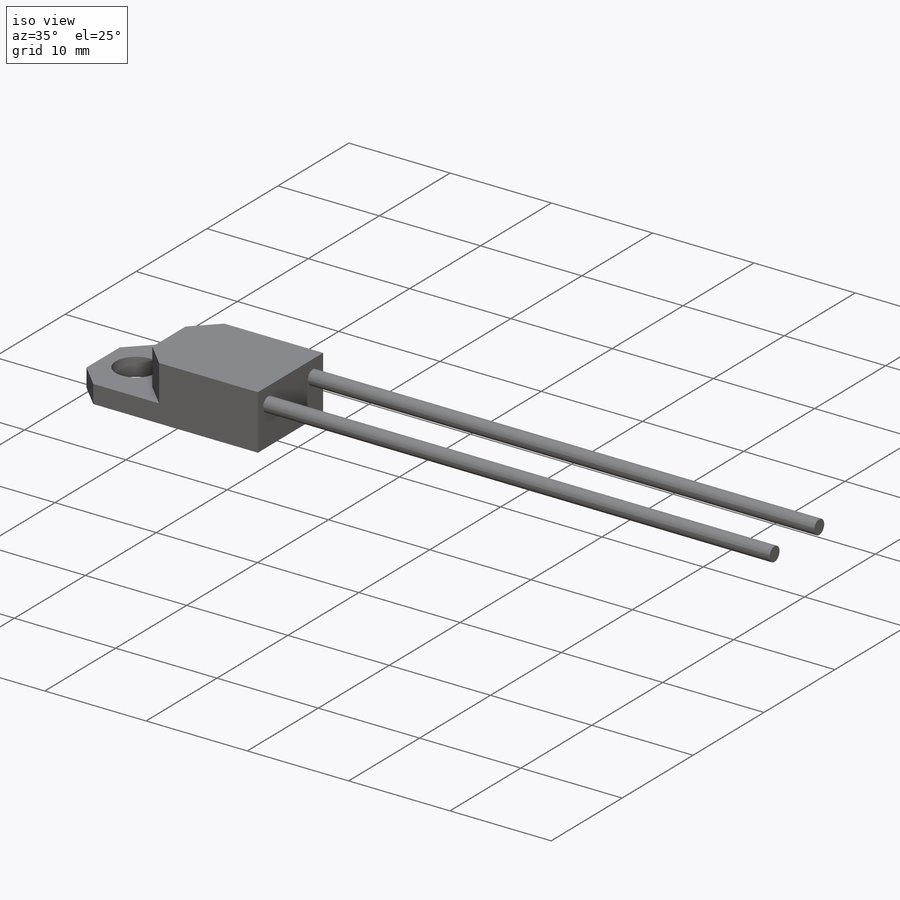
[diagram: iso view]
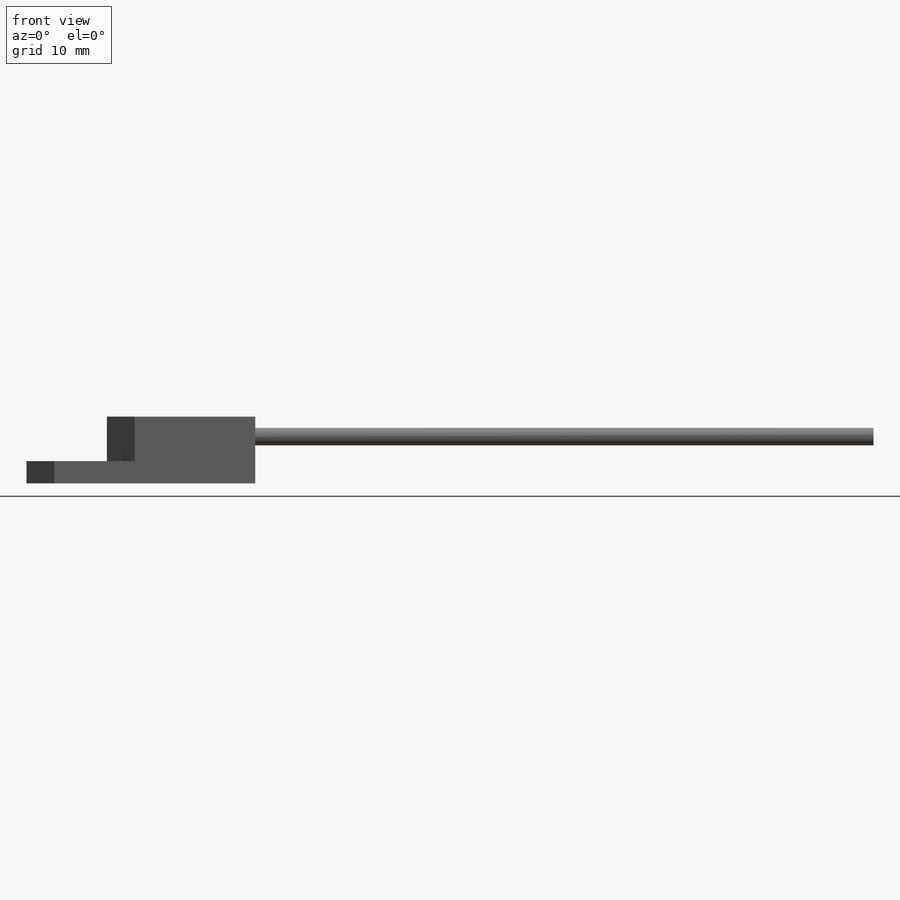
[diagram: front view]
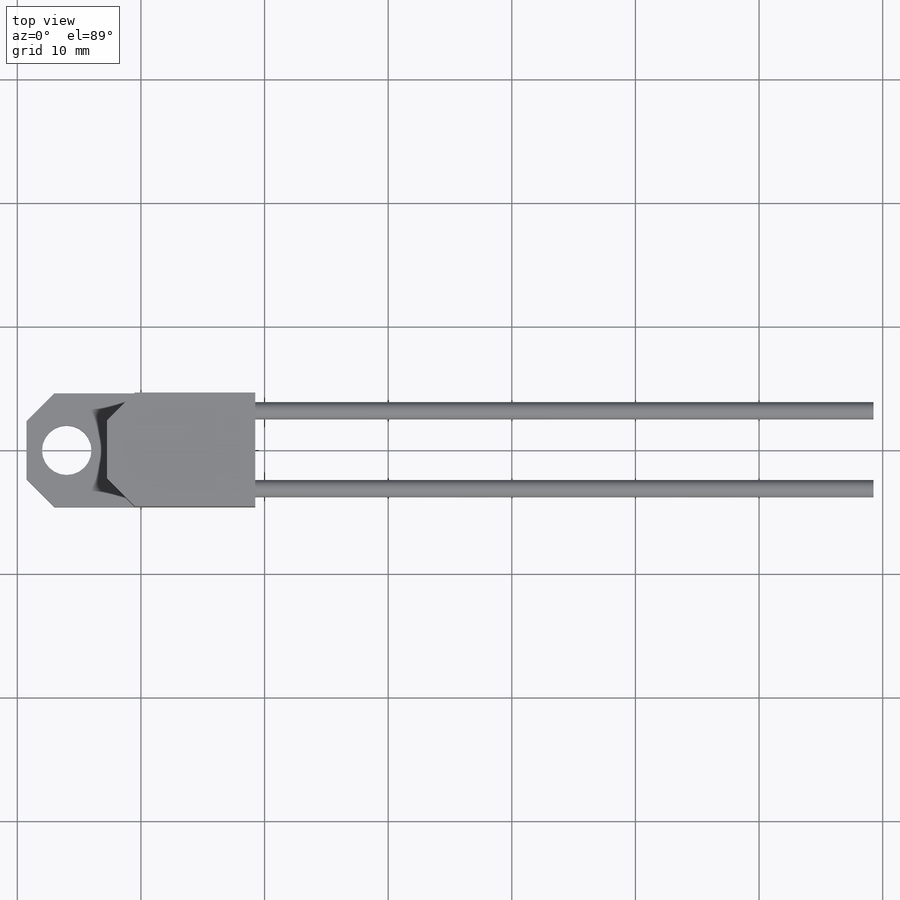
[diagram: top view]
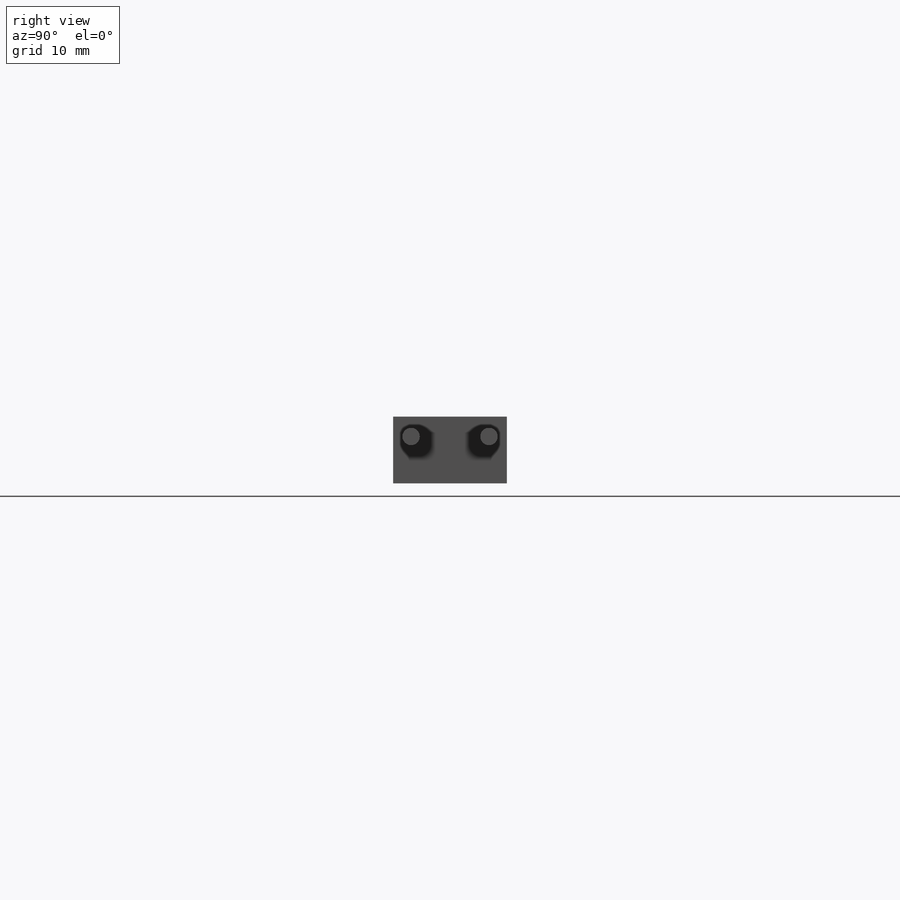
[diagram: right view]
SOLIDWORKS PART (.sldprt)
format: sldprt  version: not decoded by parser v0  size: 192,512 bytes
history: native  units: mm
features: sketch x4, extrude x3, material x1, cut_extrude x1, chamfer x1 (+11 scaffold rows collapsed)
feature tree (21):
  scaffold x11  (default folders/planes/origin — collapsed)
  material  "Material <not specified>"
  sketch  "Sketch1"  dims[D1=18.5mm D2=9.2mm]
  extrude  "Boss-Extrude1"  Depth=1.8mm
  sketch  "Sketch3"  dims[D1=12.0mm]
  extrude  "Boss-Extrude3"  Depth=3.6mm
  sketch  "Sketch2"  dims[c1.D1=1.41mm c1.D2=1.41mm c1.D3=0.666mm c1.D4=0.666mm c2.D1=0.9mm c2.D3=3.15mm c2.D4=3.15mm c2.D5=3.78mm]
  extrude  "Boss-Extrude2"  Depth=50mm
  sketch  "Sketch4"  dims[D1=4.0mm]
  cut_extrude  "Cut-Extrude1"  [1 undecoded]
  chamfer  "Chamfer1"  Distance=2.25mm Angle=45deg
decode coverage: 8 of 9 modeling features carry decoded parameters
note: 1 parameter value undecoded
note: suppression state not decoded; provenance and decode notes live in map.json
